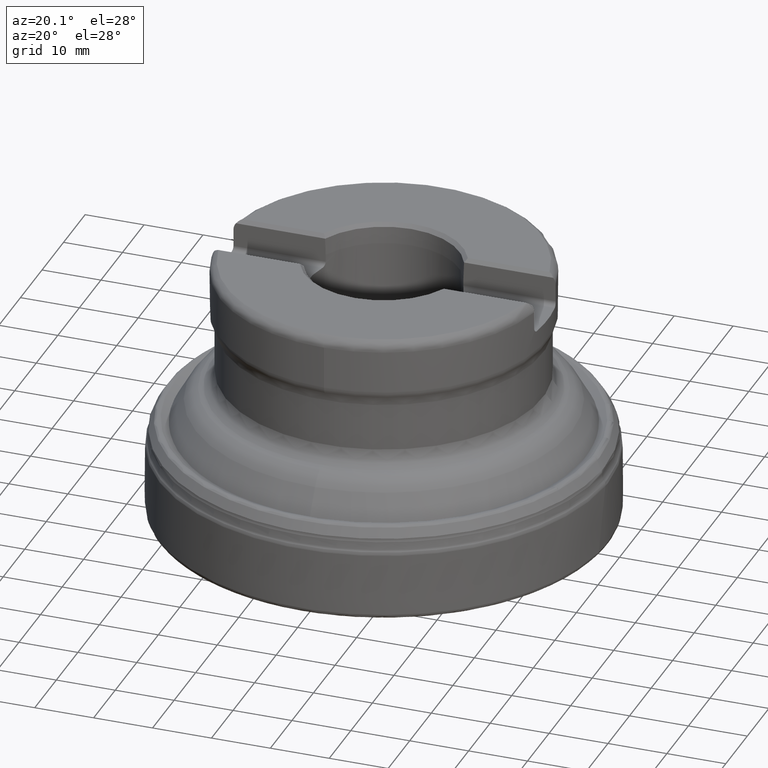
[diagram: clean part render]
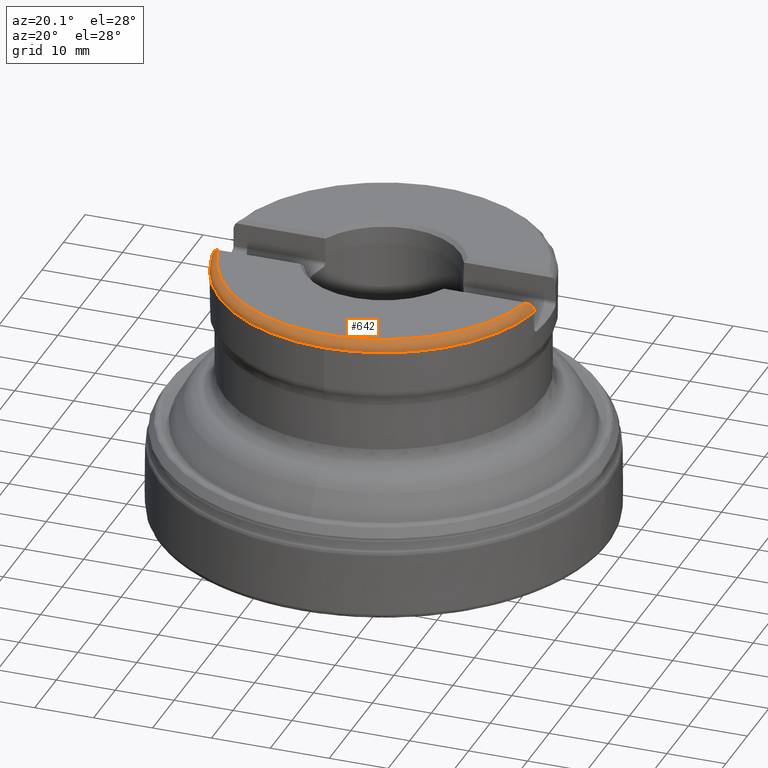
[diagram: same view with one face highlighted and labeled with its STEP entity id]
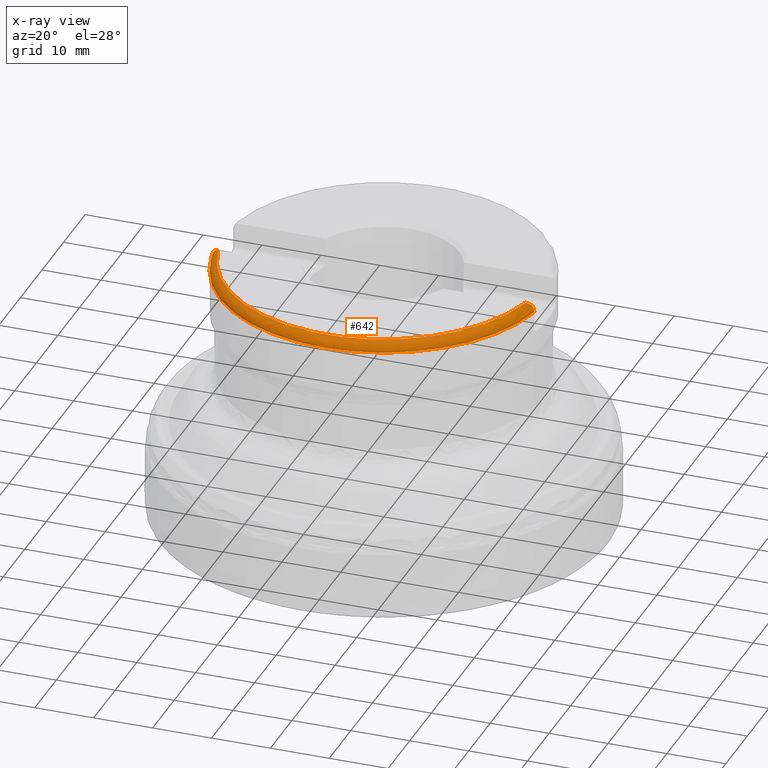
[diagram: x-ray of the same camera — body ghosted, the highlighted face saturated]
A machine part, auxiliary view. The second image highlights one B-rep face of the part: STEP entity #642.
The next image is the same camera in x-ray: the body ghosted, the highlighted face saturated — about 0% of this face is hidden behind the body in this view.
In plain terms, the highlighted toroidal blend (fillet) surface has major radius 25.8 mm and minor (blend) radius 2 mm.
Its self-contained STEP definition (entity closure, byte-faithful):
#642=ADVANCED_FACE('',(#976),#956,.T.);
#956=TOROIDAL_SURFACE('',#4614,25.8,2.);
#976=FACE_OUTER_BOUND('',#1224,.T.);
#1224=EDGE_LOOP('',(#1767,#1768,#1769,#1770,#1771,#1772));
#1605=CIRCLE('',#4612,26.6717797887081);
#1606=CIRCLE('',#4613,27.8);
#1767=ORIENTED_EDGE('',*,*,#3475,.T.);
#1768=ORIENTED_EDGE('',*,*,#3476,.T.);
#1769=ORIENTED_EDGE('',*,*,#3477,.T.);
#1770=ORIENTED_EDGE('',*,*,#3478,.F.);
#1771=ORIENTED_EDGE('',*,*,#3479,.T.);
#1772=ORIENTED_EDGE('',*,*,#3480,.T.);
#3071=VERTEX_POINT('',#5658);
#3072=VERTEX_POINT('',#5659);
#3073=VERTEX_POINT('',#5667);
#3074=VERTEX_POINT('',#5678);
#3075=VERTEX_POINT('',#5680);
#3076=VERTEX_POINT('',#5691);
#3475=EDGE_CURVE('',#3071,#3072,#1605,.T.);
#3476=EDGE_CURVE('',#3072,#3073,#4146,.T.);
#3477=EDGE_CURVE('',#3073,#3074,#4147,.T.);
#3478=EDGE_CURVE('',#3075,#3074,#1606,.T.);
#3479=EDGE_CURVE('',#3075,#3076,#4148,.T.);
#3480=EDGE_CURVE('',#3076,#3071,#4149,.T.);
#4146=B_SPLINE_CURVE_WITH_KNOTS('',3,(#5660,#5661,#5662,#5663,#5664,#5665,
#5666),.UNSPECIFIED.,.F.,.F.,(4,3,4),(0.,0.843108759295354,1.),
 .UNSPECIFIED.);
#4147=B_SPLINE_CURVE_WITH_KNOTS('',3,(#5668,#5669,#5670,#5671,#5672,#5673,
#5674,#5675,#5676,#5677),.UNSPECIFIED.,.F.,.F.,(4,3,3,4),(0.,0.195271865223351,
0.712470377469277,1.),.UNSPECIFIED.);
#4148=B_SPLINE_CURVE_WITH_KNOTS('',3,(#5681,#5682,#5683,#5684,#5685,#5686,
#5687,#5688,#5689,#5690),.UNSPECIFIED.,.F.,.F.,(4,3,3,4),(0.,0.154406294565794,
0.669501588634811,1.),.UNSPECIFIED.);
#4149=B_SPLINE_CURVE_WITH_KNOTS('',3,(#5692,#5693,#5694,#5695,#5696,#5697,
#5698),.UNSPECIFIED.,.F.,.F.,(4,3,4),(0.,0.837754554308167,1.),
 .UNSPECIFIED.);
#4612=AXIS2_PLACEMENT_3D('',#5657,#4844,#4845);
#4613=AXIS2_PLACEMENT_3D('',#5679,#4846,#4847);
#4614=AXIS2_PLACEMENT_3D('',#5699,#4848,#4849);
#4844=DIRECTION('',(0.,-1.17145536458252E-15,-1.));
#4845=DIRECTION('',(0.,-1.,1.30079319019515E-15));
#4846=DIRECTION('',(0.,-1.17145536458252E-15,-1.));
#4847=DIRECTION('',(0.,1.,-1.24800250070274E-15));
#4848=DIRECTION('',(0.,-1.17145536458252E-15,-1.));
#4849=DIRECTION('',(0.,1.,-1.24800250070274E-15));
#5657=CARTESIAN_POINT('',(0.,5.20711909556932E-14,44.45));
#5658=CARTESIAN_POINT('',(26.0847582334462,-5.56499999999995,44.45));
#5659=CARTESIAN_POINT('',(-26.0847582334462,-5.56499999999995,44.45));
#5660=CARTESIAN_POINT('',(-26.0847582334462,-5.56499999999995,44.45));
#5661=CARTESIAN_POINT('',(-26.3752333333916,-5.44004030522373,44.3250403052238));
#5662=CARTESIAN_POINT('',(-26.6290858604657,-5.26754689622535,44.1525468962254));
#5663=CARTESIAN_POINT('',(-26.8345417139795,-5.07598290354626,43.9609829035463));
#5664=CARTESIAN_POINT('',(-26.8733634658994,-5.03978607744763,43.9247860774477));
#5665=CARTESIAN_POINT('',(-26.9106620273024,-5.00274881159342,43.8877488115935));
#5666=CARTESIAN_POINT('',(-26.9464056044586,-4.96499999999995,43.85));
#5667=CARTESIAN_POINT('',(-26.9464056044586,-4.96499999999995,43.85));
#5668=CARTESIAN_POINT('',(-26.9464056044586,-4.96499999999995,43.85));
#5669=CARTESIAN_POINT('',(-26.9974981511336,-4.96499999999995,43.7830043559091));
#5670=CARTESIAN_POINT('',(-27.0444460334364,-4.96499999999995,43.7126349276802));
#5671=CARTESIAN_POINT('',(-27.0866616495757,-4.96499999999995,43.6397191789913));
#5672=CARTESIAN_POINT('',(-27.1974492509107,-4.96499999999995,43.4483643763012));
#5673=CARTESIAN_POINT('',(-27.276961871891,-4.96499999999995,43.2353562416357));
#5674=CARTESIAN_POINT('',(-27.3183060137337,-4.96499999999995,43.0181438684673));
#5675=CARTESIAN_POINT('',(-27.3413534281341,-4.96499999999995,42.8970581872999));
#5676=CARTESIAN_POINT('',(-27.3530395934346,-4.96499999999995,42.7732595858111));
#5677=CARTESIAN_POINT('',(-27.3530395934346,-4.96499999999995,42.65));
#5678=CARTESIAN_POINT('',(-27.3530395934346,-4.96499999999995,42.65));
#5679=CARTESIAN_POINT('',(0.,4.99625712994447E-14,42.65));
#5680=CARTESIAN_POINT('',(27.3530395934346,-4.96499999999995,42.65));
#5681=CARTESIAN_POINT('',(27.3530395934346,-4.96499999999995,42.65));
#5682=CARTESIAN_POINT('',(27.3530395934346,-4.96499999999995,42.7165160449717));
#5683=CARTESIAN_POINT('',(27.3496581561392,-4.96499999999995,42.7831173568593));
#5684=CARTESIAN_POINT('',(27.3429228322287,-4.96499999999995,42.8492915183613));
#5685=CARTESIAN_POINT('',(27.3206075822719,-4.96499999999995,43.0685375374416));
#5686=CARTESIAN_POINT('',(27.2601130439104,-4.96499999999995,43.2869106896943));
#5687=CARTESIAN_POINT('',(27.1666848938032,-4.96499999999995,43.4865051987139));
#5688=CARTESIAN_POINT('',(27.1066218252135,-4.96499999999995,43.6148204727681));
#5689=CARTESIAN_POINT('',(27.0323193308846,-4.96499999999995,43.7373447143911));
#5690=CARTESIAN_POINT('',(26.9464056044586,-4.96499999999995,43.85));
#5691=CARTESIAN_POINT('',(26.9464056044586,-4.96499999999995,43.85));
#5692=CARTESIAN_POINT('',(26.9464056044586,-4.96499999999995,43.85));
#5693=CARTESIAN_POINT('',(26.7583634423833,-5.16359143131573,44.0485914313158));
#5694=CARTESIAN_POINT('',(26.5236458824023,-5.34564686064062,44.2306468606407));
#5695=CARTESIAN_POINT('',(26.2506779436443,-5.48658208035576,44.3715820803558));
#5696=CARTESIAN_POINT('',(26.1969522793122,-5.5143210094822,44.3993210094823));
#5697=CARTESIAN_POINT('',(26.1415902278621,-5.5405514029358,44.4255514029359));
#5698=CARTESIAN_POINT('',(26.0847582334462,-5.56499999999995,44.45));
#5699=CARTESIAN_POINT('',(0.,4.99625712994447E-14,42.65));